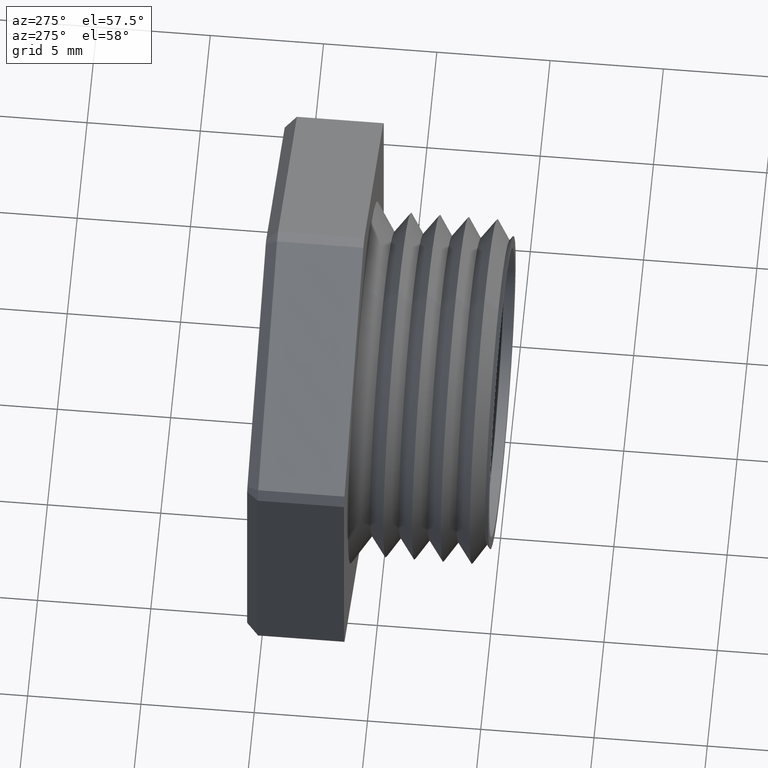
[diagram: clean part render]
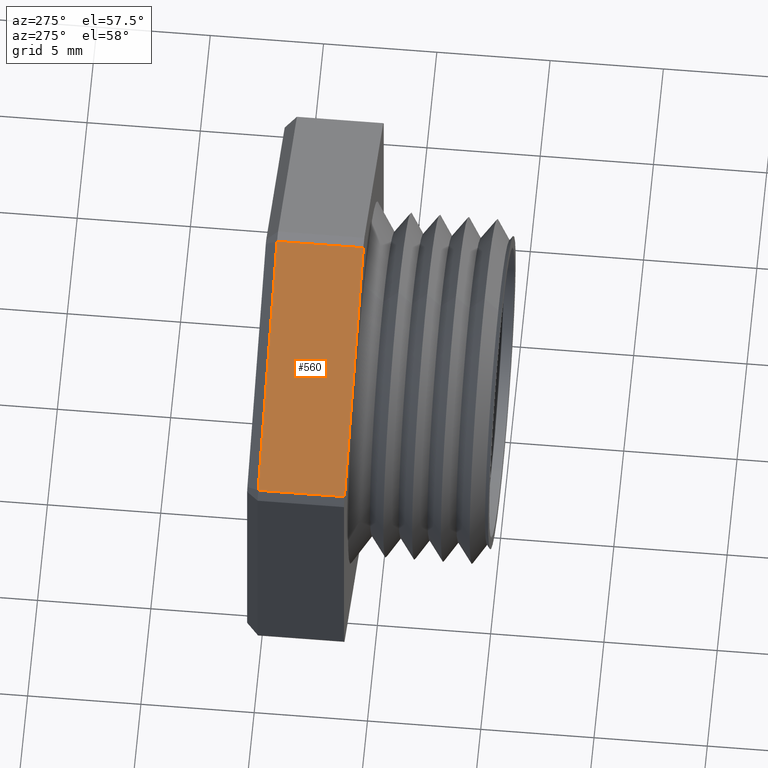
[diagram: same view with one face highlighted and labeled with its STEP entity id]
A machine part, auxiliary view. The second image highlights one B-rep face of the part: STEP entity #560.
In plain terms, the highlighted planar face has unit normal (-0.5, 0, 0.866).
Its self-contained STEP definition (entity closure, byte-faithful):
#118 = EDGE_CURVE ( 'NONE', #420, #163, #1074, .T. ) ;
#163 = VERTEX_POINT ( 'NONE', #1123 ) ;
#414 = VERTEX_POINT ( 'NONE', #1628 ) ;
#419 = EDGE_CURVE ( 'NONE', #414, #420, #1621, .T. ) ;
#420 = VERTEX_POINT ( 'NONE', #1617 ) ;
#491 = VERTEX_POINT ( 'NONE', #1778 ) ;
#539 = EDGE_CURVE ( 'NONE', #491, #414, #1888, .T. ) ;
#560 = ADVANCED_FACE ( 'NONE', ( #1908 ), #1907, .T. ) ;
#561 = EDGE_LOOP ( 'NONE', ( #562, #563, #565, #566 ) ) ;
#562 = ORIENTED_EDGE ( 'NONE', *, *, #539, .F. ) ;
#563 = ORIENTED_EDGE ( 'NONE', *, *, #564, .T. ) ;
#564 = EDGE_CURVE ( 'NONE', #491, #163, #1902, .T. ) ;
#565 = ORIENTED_EDGE ( 'NONE', *, *, #118, .F. ) ;
#566 = ORIENTED_EDGE ( 'NONE', *, *, #419, .F. ) ;
#1071 = DIRECTION ( 'NONE',  ( 0.0000000000000000000, 1.000000000000000000, 0.0000000000000000000 ) ) ;
#1072 = VECTOR ( 'NONE', #1071, 39.37007874015748100 ) ;
#1073 = CARTESIAN_POINT ( 'NONE',  ( -0.3847399997329629100, 0.0000000000000000000, 0.2339769702459618100 ) ) ;
#1074 = LINE ( 'NONE', #1073, #1072 ) ;
#1123 = CARTESIAN_POINT ( 'NONE',  ( -0.3847399997329629100, 0.3875548905829478400, 0.2339769702459618100 ) ) ;
#1617 = CARTESIAN_POINT ( 'NONE',  ( -0.3847399997329630200, 0.2375548905829479600, 0.2339769702459617900 ) ) ;
#1618 = DIRECTION ( 'NONE',  ( -0.8660254037844386000, 0.0000000000000000000, -0.4999999999999998300 ) ) ;
#1619 = VECTOR ( 'NONE', #1618, 39.37007874015748900 ) ;
#1620 = CARTESIAN_POINT ( 'NONE',  ( 4.505440556987010000E-017, 0.2375548905829479600, 0.4561067126598044600 ) ) ;
#1621 = LINE ( 'NONE', #1620, #1619 ) ;
#1628 = CARTESIAN_POINT ( 'NONE',  ( -0.01026000026703704200, 0.2375548905829479600, 0.4501830987437449600 ) ) ;
#1778 = CARTESIAN_POINT ( 'NONE',  ( -0.01026000026703699000, 0.3875548905829478400, 0.4501830987437449000 ) ) ;
#1885 = DIRECTION ( 'NONE',  ( -0.0000000000000000000, -1.000000000000000000, -0.0000000000000000000 ) ) ;
#1886 = VECTOR ( 'NONE', #1885, 39.37007874015748100 ) ;
#1887 = CARTESIAN_POINT ( 'NONE',  ( -0.01026000026703699000, 0.0000000000000000000, 0.4501830987437449000 ) ) ;
#1888 = LINE ( 'NONE', #1887, #1886 ) ;
#1899 = DIRECTION ( 'NONE',  ( -0.8660254037844388200, 0.0000000000000000000, -0.4999999999999998300 ) ) ;
#1900 = VECTOR ( 'NONE', #1899, 39.37007874015748100 ) ;
#1901 = CARTESIAN_POINT ( 'NONE',  ( 4.505440556987010000E-017, 0.3875548905829478400, 0.4561067126598044600 ) ) ;
#1902 = LINE ( 'NONE', #1901, #1900 ) ;
#1903 = DIRECTION ( 'NONE',  ( 0.8660254037844388200, 0.0000000000000000000, 0.4999999999999998300 ) ) ;
#1904 = DIRECTION ( 'NONE',  ( -0.4999999999999998300, 0.0000000000000000000, 0.8660254037844388200 ) ) ;
#1905 = CARTESIAN_POINT ( 'NONE',  ( 4.505440556987010000E-017, 0.4075548905829479700, 0.4561067126598044600 ) ) ;
#1906 = AXIS2_PLACEMENT_3D ( 'NONE', #1905, #1904, #1903 ) ;
#1907 = PLANE ( 'NONE',  #1906 ) ;
#1908 = FACE_OUTER_BOUND ( 'NONE', #561, .T. ) ;